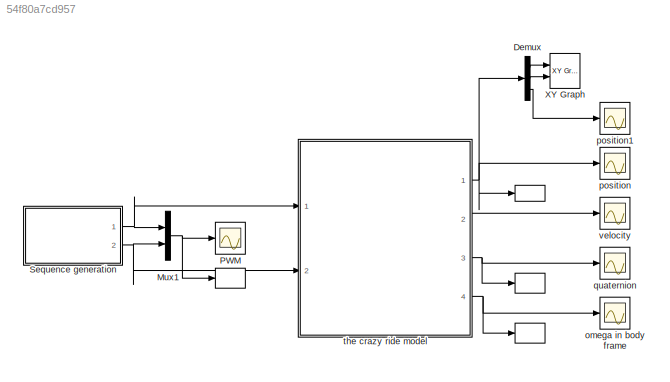
MODEL slx_54f80a7cd957
KIND model
CONFIG AbsTol = auto
CONFIG FixedStep = auto
CONFIG MaxStep = auto
CONFIG MinStep = auto
CONFIG RelTol = 1e-3
CONFIG SampleTimeConstraint = Unconstrained
CONFIG Solver = VariableStepAuto
CONFIG SolverMode = Auto
CONFIG SolverName = VariableStepAuto
CONFIG StartTime = 0.0
CONFIG StopTime = 60
BLOCK [ToWorkspace]   
  FixptAsFi = on
  MaxDataPoints = inf
  Ports = [1]
  SampleTime = -1
  Save2DSignal = 3-D array (concatenate along third dimension)
  SaveFormat = Timeseries
  VariableName = quat
BLOCK [ToWorkspace]    
  FixptAsFi = on
  MaxDataPoints = inf
  Ports = [1]
  SampleTime = -1
  Save2DSignal = 3-D array (concatenate along third dimension)
  SaveFormat = Timeseries
  VariableName = PWM
BLOCK [ToWorkspace]     
  FixptAsFi = on
  MaxDataPoints = inf
  Ports = [1]
  SampleTime = -1
  Save2DSignal = 3-D array (concatenate along third dimension)
  SaveFormat = Timeseries
  VariableName = omega
BLOCK [ToWorkspace]      
  FixptAsFi = on
  MaxDataPoints = inf
  Ports = [1]
  SampleTime = -1
  Save2DSignal = 3-D array (concatenate along third dimension)
  SaveFormat = Timeseries
  VariableName = pos
BLOCK [Demux] Demux
  DisplayOption = bar
  Outputs = [1,1,1]
  Ports = [1, 3]
BLOCK [Mux] Mux1
  DisplayOption = bar
  Inputs = 2
  Ports = [2, 1]
BLOCK [Scope] PWM
  Ports = [1]
  ScopeSpecificationString = Simulink.scopes.TimeScopeBlockCfg('CurrentConfiguration', extmgr.ConfigurationSet(extmgr.Configuration('Core','General UI',true),extmgr.Configuration('Core','Source UI',true),extmgr.Configuration('Sources','WiredSimulink',true,'DataLoggingVariableName','ScopeData1','DataLoggingLimitDataPoints',true,'DataLoggingSaveFormat','Array','DataLoggingDecimation','1','DataLoggingDecimateData',true),extmgr.C...<+1546ch>
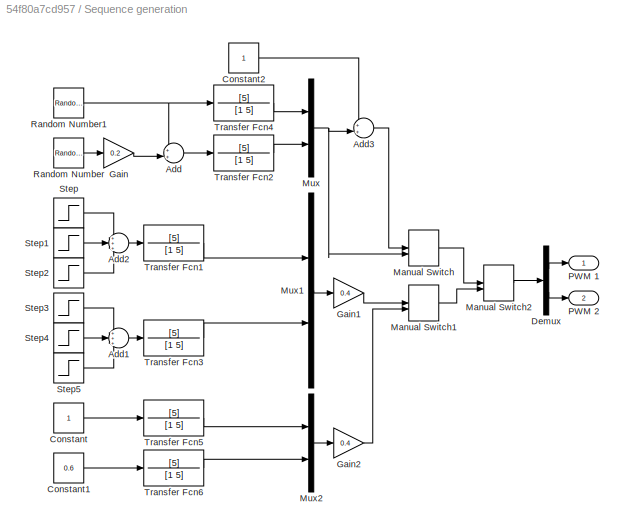
BLOCK [SubSystem] Sequence generation
  Ports = [0, 2]
  RequestExecContextInheritance = off
  Variant = off
BLOCK [Sum] Sequence generation/Add
  IconShape = round
  InputSameDT = off
  Inputs = ++|
  OutDataTypeStr = Inherit: Inherit via internal rule
  Ports = [2, 1]
  SaturateOnIntegerOverflow = off
BLOCK [Sum] Sequence generation/Add1
  IconShape = round
  InputSameDT = off
  Inputs = +++
  OutDataTypeStr = Inherit: Inherit via internal rule
  Ports = [3, 1]
  SaturateOnIntegerOverflow = off
BLOCK [Sum] Sequence generation/Add2
  IconShape = round
  InputSameDT = off
  Inputs = +++
  OutDataTypeStr = Inherit: Inherit via internal rule
  Ports = [3, 1]
  SaturateOnIntegerOverflow = off
BLOCK [Sum] Sequence generation/Add3
  IconShape = round
  InputSameDT = off
  Inputs = ++|
  OutDataTypeStr = Inherit: Inherit via internal rule
  Ports = [2, 1]
  SaturateOnIntegerOverflow = off
BLOCK [Constant] Sequence generation/Constant
BLOCK [Constant] Sequence generation/Constant1
  Value = 0.6
BLOCK [Constant] Sequence generation/Constant2
BLOCK [Demux] Sequence generation/Demux
  DisplayOption = bar
  Outputs = 2
  Ports = [1, 2]
BLOCK [Gain] Sequence generation/Gain
  Gain = 0.2
  OutDataTypeStr = Inherit: Inherit via internal rule
  ParamDataTypeStr = Inherit: Inherit via internal rule
  SaturateOnIntegerOverflow = off
BLOCK [Gain] Sequence generation/Gain1
  Gain = 0.4
  OutDataTypeStr = Inherit: Inherit via internal rule
  ParamDataTypeStr = Inherit: Inherit via internal rule
  SaturateOnIntegerOverflow = off
BLOCK [Gain] Sequence generation/Gain2
  Gain = 0.4
  OutDataTypeStr = Inherit: Inherit via internal rule
  ParamDataTypeStr = Inherit: Inherit via internal rule
  SaturateOnIntegerOverflow = off
BLOCK [ManualSwitch] Sequence generation/Manual Switch
BLOCK [ManualSwitch] Sequence generation/Manual Switch1
  CurrentSetting = 0
BLOCK [ManualSwitch] Sequence generation/Manual Switch2
  CurrentSetting = 0
BLOCK [Mux] Sequence generation/Mux
  DisplayOption = bar
  Inputs = 2
  Ports = [2, 1]
BLOCK [Mux] Sequence generation/Mux1
  DisplayOption = bar
  Inputs = 2
  Ports = [2, 1]
BLOCK [Mux] Sequence generation/Mux2
  DisplayOption = bar
  Inputs = 2
  Ports = [2, 1]
BLOCK [Outport] Sequence generation/PWM 1
  IconDisplay = Port number
BLOCK [Outport] Sequence generation/PWM 2
  IconDisplay = Port number
  Port = 2
BLOCK [RandomNumber] Sequence generation/Random Number
  SampleTime = 1
  Seed = 1
BLOCK [RandomNumber] Sequence generation/Random Number1
  SampleTime = 1
BLOCK [Step] Sequence generation/Step
  SampleTime = 0
BLOCK [Step] Sequence generation/Step1
  After = -2
  SampleTime = 0
  Time = 3
BLOCK [Step] Sequence generation/Step2
  SampleTime = 0
  Time = 5
BLOCK [Step] Sequence generation/Step3
  SampleTime = 0
  Time = 7
BLOCK [Step] Sequence generation/Step4
  After = -2
  SampleTime = 0
  Time = 9
BLOCK [Step] Sequence generation/Step5
  SampleTime = 0
  Time = 11
BLOCK [TransferFcn] Sequence generation/Transfer Fcn1
  Denominator = [1 5]
  Numerator = [5]
BLOCK [TransferFcn] Sequence generation/Transfer Fcn2
  Denominator = [1 5]
  Numerator = [5]
BLOCK [TransferFcn] Sequence generation/Transfer Fcn3
  Denominator = [1 5]
  Numerator = [5]
BLOCK [TransferFcn] Sequence generation/Transfer Fcn4
  Denominator = [1 5]
  Numerator = [5]
BLOCK [TransferFcn] Sequence generation/Transfer Fcn5
  Denominator = [1 5]
  Numerator = [5]
BLOCK [TransferFcn] Sequence generation/Transfer Fcn6
  Denominator = [1 5]
  Numerator = [5]
BLOCK [Reference] XY Graph  REF=simulink/Sinks/XY Graph
  Ports = [2]
  SourceBlock = simulink/Sinks/XY Graph
  SourceType = XY scope.
BLOCK [Scope] omega in body frame
  Ports = [1]
  ScopeSpecificationString = Simulink.scopes.TimeScopeBlockCfg('CurrentConfiguration', extmgr.ConfigurationSet(extmgr.Configuration('Core','General UI',true),extmgr.Configuration('Core','Source UI',true),extmgr.Configuration('Sources','WiredSimulink',true,'DataLoggingVariableName','ScopeData1','DataLoggingLimitDataPoints',true,'DataLoggingSaveFormat','Array','DataLoggingDecimation','1','DataLoggingDecimateData',true),extmgr.C...<+1591ch>
BLOCK [Scope] position
  Ports = [1]
  ScopeSpecificationString = Simulink.scopes.TimeScopeBlockCfg('CurrentConfiguration', extmgr.ConfigurationSet(extmgr.Configuration('Core','General UI',true),extmgr.Configuration('Core','Source UI',true),extmgr.Configuration('Sources','WiredSimulink',true,'DataLoggingLimitDataPoints',true,'DataLoggingSaveFormat','Array','DataLoggingDecimation','1','DataLoggingDecimateData',true),extmgr.Configuration('Visuals','Time Domain',tr...<+1598ch>
BLOCK [Scope] position1
  Ports = [1]
  ScopeSpecificationString = Simulink.scopes.TimeScopeBlockCfg('CurrentConfiguration', extmgr.ConfigurationSet(extmgr.Configuration('Core','General UI',true),extmgr.Configuration('Core','Source UI',true),extmgr.Configuration('Sources','WiredSimulink',true,'DataLoggingLimitDataPoints',true,'DataLoggingSaveFormat','Array','DataLoggingDecimation','1','DataLoggingDecimateData',true,'DataLoggingVariableName','ScopeData4'),extmgr.C...<+1520ch>
BLOCK [Scope] quaternion
  Ports = [1]
  ScopeSpecificationString = Simulink.scopes.TimeScopeBlockCfg('CurrentConfiguration', extmgr.ConfigurationSet(extmgr.Configuration('Core','General UI',true),extmgr.Configuration('Core','Source UI',true),extmgr.Configuration('Sources','WiredSimulink',true,'DataLoggingVariableName','ScopeData2','DataLoggingLimitDataPoints',true,'DataLoggingSaveFormat','Array','DataLoggingDecimation','1','DataLoggingDecimateData',true),extmgr.C...<+1617ch>
BLOCK [ModelReference] the crazy ride model
  ModelNameDialog = crazy_ride.slx
  ModelReferenceVersion = 1.12
  Ports = [2, 4]
  Variant = off
BLOCK [Scope] velocity
  Ports = [1]
  ScopeSpecificationString = Simulink.scopes.TimeScopeBlockCfg('CurrentConfiguration', extmgr.ConfigurationSet(extmgr.Configuration('Core','General UI',true),extmgr.Configuration('Core','Source UI',true),extmgr.Configuration('Sources','WiredSimulink',true,'DataLoggingVariableName','ScopeData3','DataLoggingLimitDataPoints',true,'DataLoggingSaveFormat','Array','DataLoggingDecimation','1','DataLoggingDecimateData',true),extmgr.C...<+1605ch>
LINE Demux:1 -> XY Graph:1
LINE Demux:2 -> XY Graph:2
LINE Demux:3 -> position1:1
NET Mux1:1 ->    :1, PWM:1
LINE Sequence generation/Add1:1 -> Sequence generation/Transfer Fcn3:1
LINE Sequence generation/Add2:1 -> Sequence generation/Transfer Fcn1:1
LINE Sequence generation/Add3:1 -> Sequence generation/Manual Switch:1
LINE Sequence generation/Add:1 -> Sequence generation/Transfer Fcn2:1
LINE Sequence generation/Constant1:1 -> Sequence generation/Transfer Fcn6:1
LINE Sequence generation/Constant2:1 -> Sequence generation/Add3:1
LINE Sequence generation/Constant:1 -> Sequence generation/Transfer Fcn5:1
LINE Sequence generation/Demux:1 -> Sequence generation/PWM 1:1
LINE Sequence generation/Demux:2 -> Sequence generation/PWM 2:1
LINE Sequence generation/Gain1:1 -> Sequence generation/Manual Switch1:1
LINE Sequence generation/Gain2:1 -> Sequence generation/Manual Switch1:2
LINE Sequence generation/Gain:1 -> Sequence generation/Add:2
LINE Sequence generation/Manual Switch1:1 -> Sequence generation/Manual Switch2:2
LINE Sequence generation/Manual Switch2:1 -> Sequence generation/Demux:1
LINE Sequence generation/Manual Switch:1 -> Sequence generation/Manual Switch2:1
LINE Sequence generation/Mux1:1 -> Sequence generation/Gain1:1
LINE Sequence generation/Mux2:1 -> Sequence generation/Gain2:1
NET Sequence generation/Mux:1 -> Sequence generation/Add3:2, Sequence generation/Manual Switch:2
NET Sequence generation/Random Number1:1 -> Sequence generation/Add:1, Sequence generation/Transfer Fcn4:1
LINE Sequence generation/Random Number:1 -> Sequence generation/Gain:1
LINE Sequence generation/Step1:1 -> Sequence generation/Add2:2
LINE Sequence generation/Step2:1 -> Sequence generation/Add2:3
LINE Sequence generation/Step3:1 -> Sequence generation/Add1:1
LINE Sequence generation/Step4:1 -> Sequence generation/Add1:2
LINE Sequence generation/Step5:1 -> Sequence generation/Add1:3
LINE Sequence generation/Step:1 -> Sequence generation/Add2:1
LINE Sequence generation/Transfer Fcn1:1 -> Sequence generation/Mux1:1
LINE Sequence generation/Transfer Fcn2:1 -> Sequence generation/Mux:2
LINE Sequence generation/Transfer Fcn3:1 -> Sequence generation/Mux1:2
LINE Sequence generation/Transfer Fcn4:1 -> Sequence generation/Mux:1
LINE Sequence generation/Transfer Fcn5:1 -> Sequence generation/Mux2:1
LINE Sequence generation/Transfer Fcn6:1 -> Sequence generation/Mux2:2
NET Sequence generation:1 -> Mux1:1, the crazy ride model:1
NET Sequence generation:2 -> Mux1:2, the crazy ride model:2
NET the crazy ride model:1 ->      :1, Demux:1, position:1
LINE the crazy ride model:2 -> velocity:1
NET the crazy ride model:3 ->   :1, quaternion:1
NET the crazy ride model:4 ->     :1, omega in body frame:1
note: NET lines group one-source signal fan-out (src -> all destinations, sorted); 1:1 wires keep LINE
